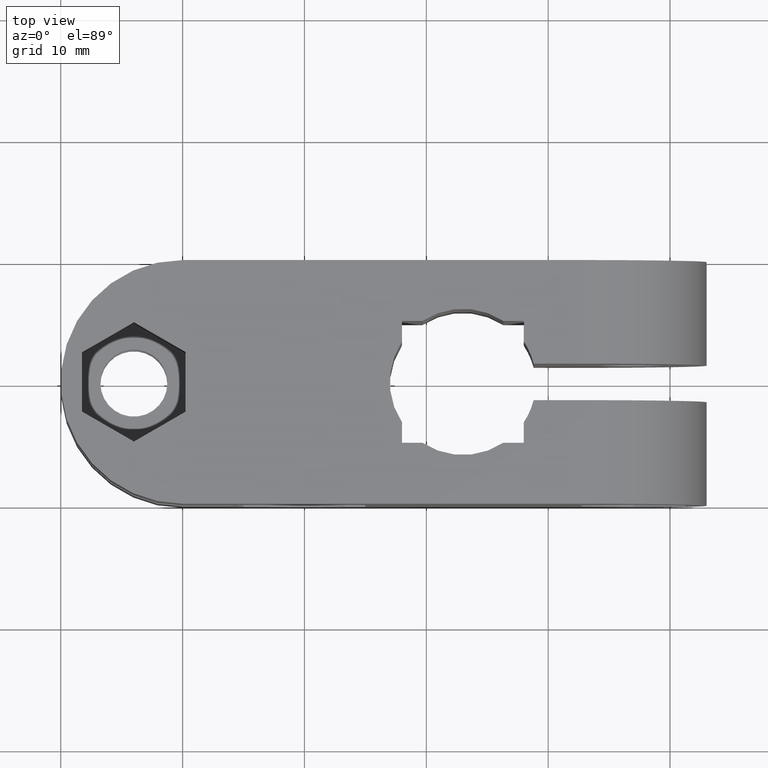
[diagram: clean part render]
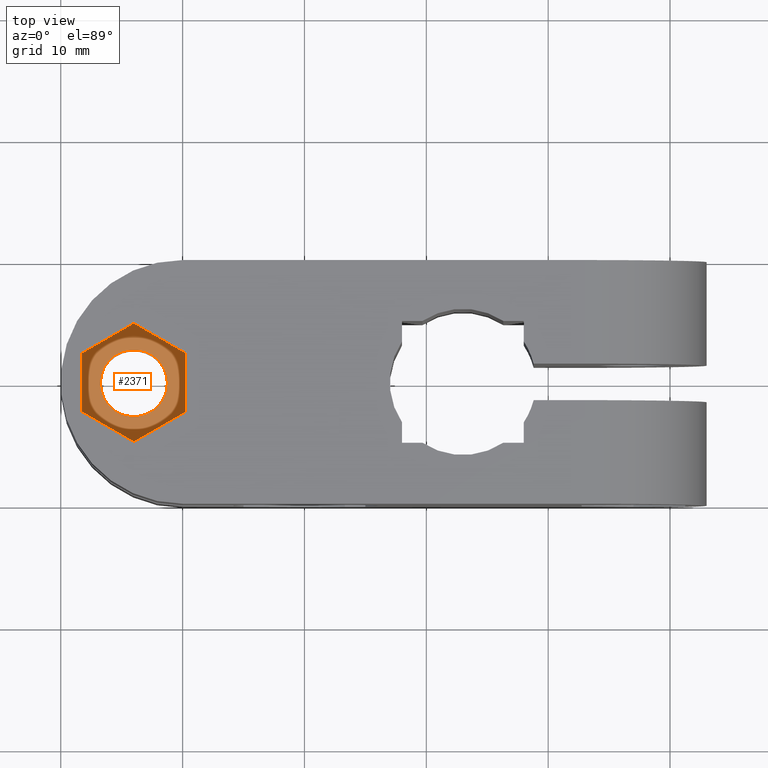
[diagram: same view with one face highlighted and labeled with its STEP entity id]
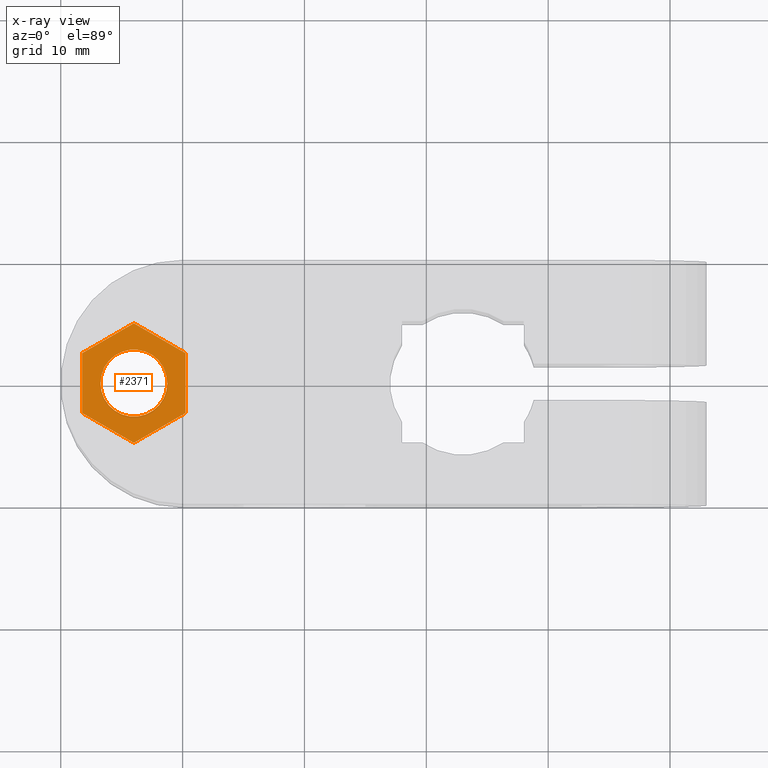
[diagram: x-ray of the same camera — body ghosted, the highlighted face saturated]
A machine part, top view. The second image highlights one B-rep face of the part: STEP entity #2371.
The next image is the same camera in x-ray: the body ghosted, the highlighted face saturated — about 0% of this face is hidden behind the body in this view.
In plain terms, the highlighted planar face has unit normal (0, 0, 1).
Its self-contained STEP definition (entity closure, byte-faithful):
#2020=CARTESIAN_POINT('',(-11.249999999999996,-10.000000000000004,4.0));
#2021=VERTEX_POINT('',#2020);
#2028=CARTESIAN_POINT('',(-16.749999999999996,-10.000000000000004,4.0));
#2029=VERTEX_POINT('',#2028);
#2030=CARTESIAN_POINT('',(-13.999999999999996,-10.000000000000004,4.0));
#2031=DIRECTION('',(0.0,0.0,1.0));
#2032=DIRECTION('',(1.0,0.0,0.0));
#2033=AXIS2_PLACEMENT_3D('',#2030,#2031,#2032);
#2034=CIRCLE('',#2033,2.750000000000000);
#2035=EDGE_CURVE('',#2021,#2029,#2034,.T.);
#2037=CARTESIAN_POINT('',(-13.999999999999996,-10.000000000000004,4.0));
#2038=DIRECTION('',(0.0,0.0,1.0));
#2039=DIRECTION('',(1.0,0.0,0.0));
#2040=AXIS2_PLACEMENT_3D('',#2037,#2038,#2039);
#2041=CIRCLE('',#2040,2.750000000000000);
#2042=EDGE_CURVE('',#2029,#2021,#2041,.T.);
#2215=CARTESIAN_POINT('',(-13.999999999999996,-14.907477288111824,4.0));
#2216=VERTEX_POINT('',#2215);
#2224=CARTESIAN_POINT('',(-9.749999999999996,-12.453738644055914,4.0));
#2225=VERTEX_POINT('',#2224);
#2232=CARTESIAN_POINT('',(-13.999999999999996,-14.907477288111824,4.0));
#2233=DIRECTION('',(0.866025403784439,0.500000000000000,0.0));
#2234=VECTOR('',#2233,4.907477288111819);
#2235=LINE('',#2232,#2234);
#2236=EDGE_CURVE('',#2216,#2225,#2235,.T.);
#2248=CARTESIAN_POINT('',(-9.749999999999996,-7.546261355944093,4.0));
#2249=VERTEX_POINT('',#2248);
#2256=CARTESIAN_POINT('',(-9.749999999999996,-12.453738644055914,4.0));
#2257=DIRECTION('',(0.0,1.0,0.0));
#2258=VECTOR('',#2257,4.907477288111821);
#2259=LINE('',#2256,#2258);
#2260=EDGE_CURVE('',#2225,#2249,#2259,.T.);
#2272=CARTESIAN_POINT('',(-13.999999999999993,-5.092522711888183,4.0));
#2273=VERTEX_POINT('',#2272);
#2280=CARTESIAN_POINT('',(-9.749999999999996,-7.546261355944093,4.0));
#2281=DIRECTION('',(-0.866025403784439,0.500000000000000,0.0));
#2282=VECTOR('',#2281,4.907477288111819);
#2283=LINE('',#2280,#2282);
#2284=EDGE_CURVE('',#2249,#2273,#2283,.T.);
#2296=CARTESIAN_POINT('',(-18.249999999999993,-7.546261355944093,4.0));
#2297=VERTEX_POINT('',#2296);
#2304=CARTESIAN_POINT('',(-13.999999999999993,-5.092522711888183,4.0));
#2305=DIRECTION('',(-0.866025403784439,-0.500000000000000,0.0));
#2306=VECTOR('',#2305,4.907477288111819);
#2307=LINE('',#2304,#2306);
#2308=EDGE_CURVE('',#2273,#2297,#2307,.T.);
#2320=CARTESIAN_POINT('',(-18.250000000000000,-12.453738644055907,4.0));
#2321=VERTEX_POINT('',#2320);
#2328=CARTESIAN_POINT('',(-18.249999999999993,-7.546261355944093,4.0));
#2329=DIRECTION('',(0.0,-1.0,0.0));
#2330=VECTOR('',#2329,4.907477288111814);
#2331=LINE('',#2328,#2330);
#2332=EDGE_CURVE('',#2297,#2321,#2331,.T.);
#2342=CARTESIAN_POINT('',(-18.250000000000000,-12.453738644055907,4.0));
#2343=DIRECTION('',(0.866025403784438,-0.500000000000001,0.0));
#2344=VECTOR('',#2343,4.907477288111823);
#2345=LINE('',#2342,#2344);
#2346=EDGE_CURVE('',#2321,#2216,#2345,.T.);
#2354=CARTESIAN_POINT('',(-19.100047435033563,-15.889020180769638,4.0));
#2355=DIRECTION('',(0.0,0.0,1.0));
#2356=DIRECTION('',(1.0,0.0,0.0));
#2357=AXIS2_PLACEMENT_3D('',#2354,#2355,#2356);
#2358=PLANE('',#2357);
#2359=ORIENTED_EDGE('',*,*,#2236,.T.);
#2360=ORIENTED_EDGE('',*,*,#2260,.T.);
#2361=ORIENTED_EDGE('',*,*,#2284,.T.);
#2362=ORIENTED_EDGE('',*,*,#2308,.T.);
#2363=ORIENTED_EDGE('',*,*,#2332,.T.);
#2364=ORIENTED_EDGE('',*,*,#2346,.T.);
#2365=EDGE_LOOP('',(#2359,#2360,#2361,#2362,#2363,#2364));
#2366=FACE_OUTER_BOUND('',#2365,.T.);
#2367=ORIENTED_EDGE('',*,*,#2042,.F.);
#2368=ORIENTED_EDGE('',*,*,#2035,.F.);
#2369=EDGE_LOOP('',(#2367,#2368));
#2370=FACE_BOUND('',#2369,.T.);
#2371=ADVANCED_FACE('',(#2366,#2370),#2358,.T.);